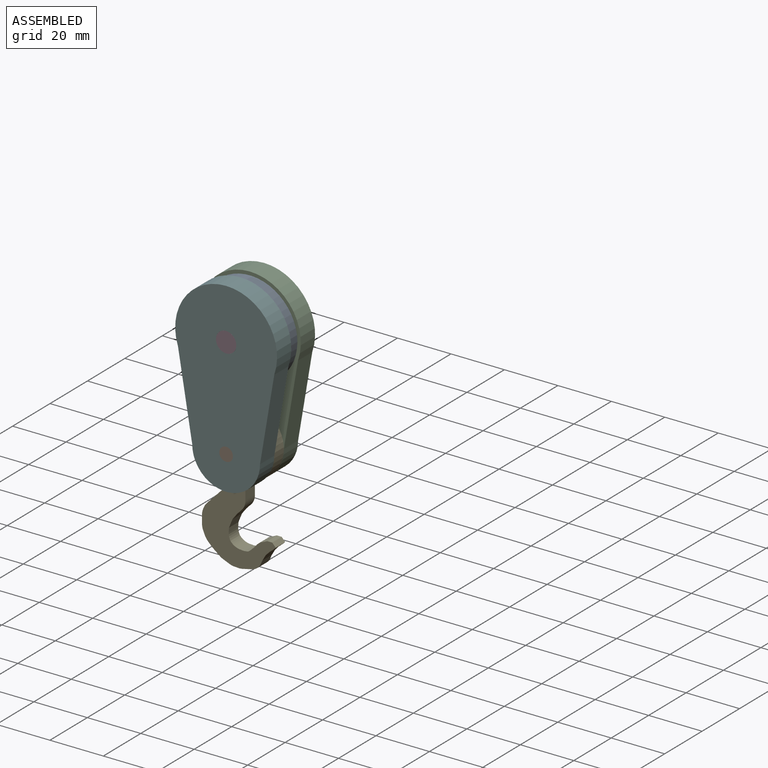
[diagram: assembled view]
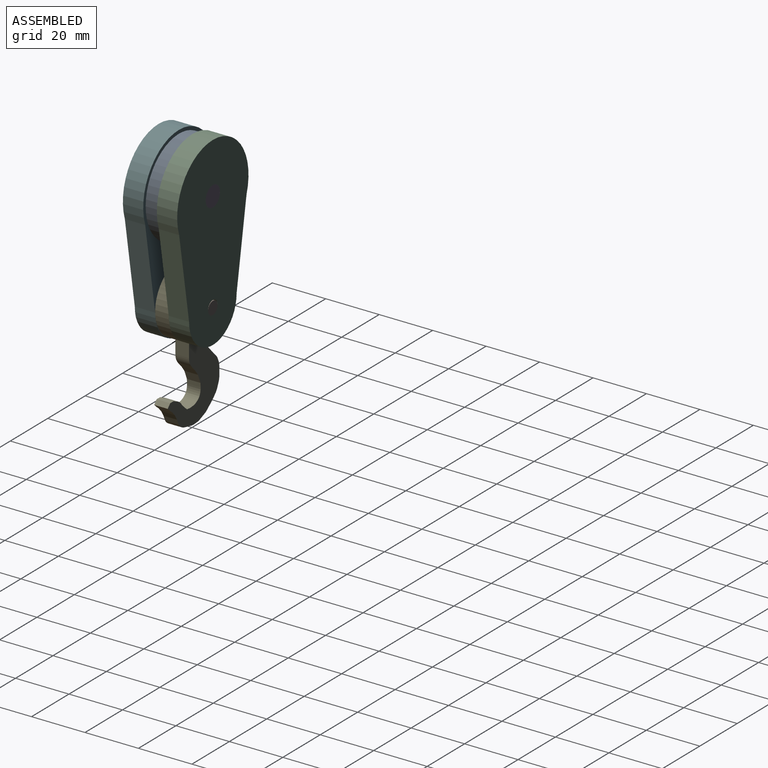
[diagram: assembled view, second angle]
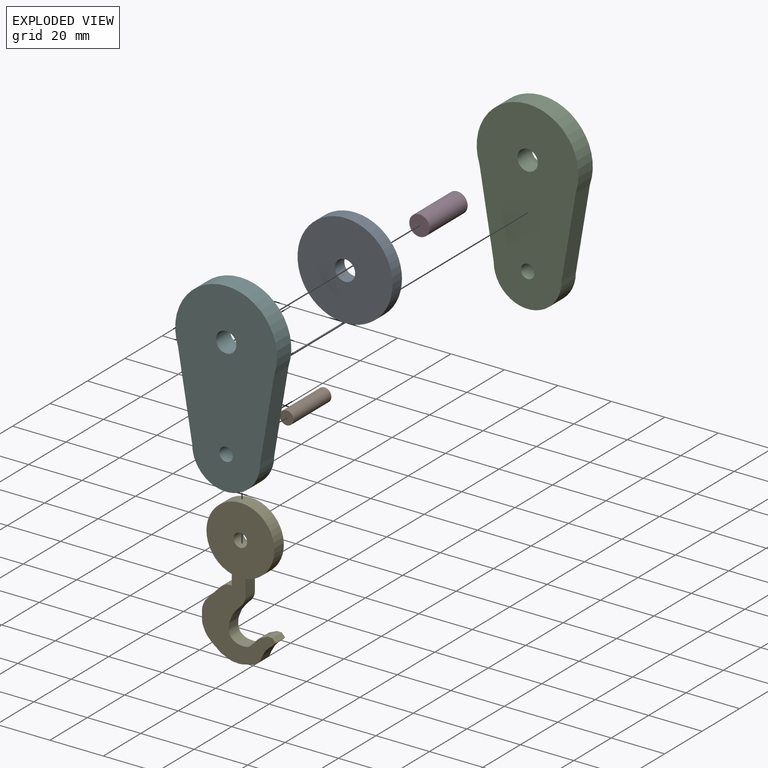
[diagram: exploded view]
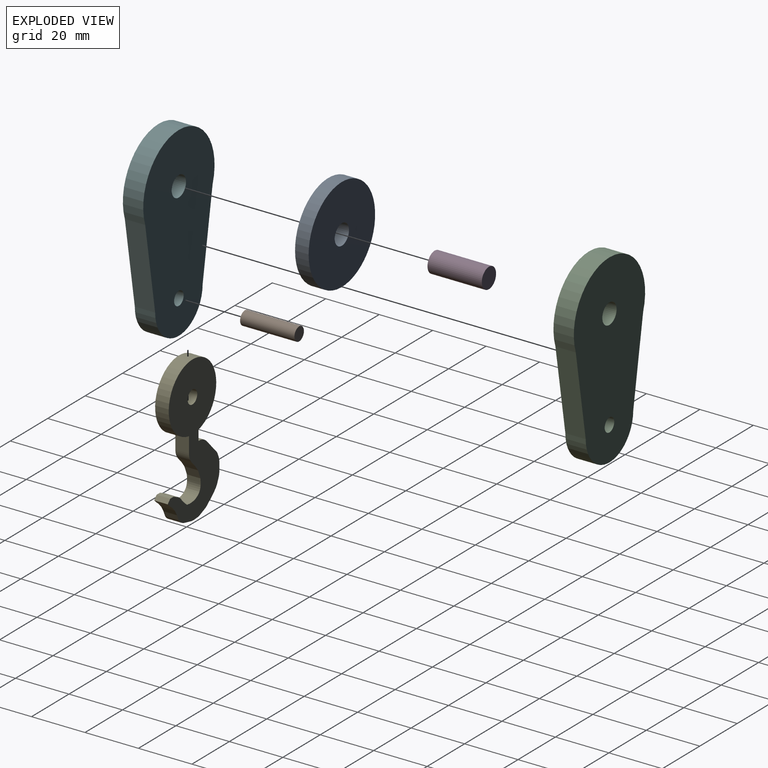
[diagram: exploded view, second angle]
ASSEMBLY  parts=6 mates=5
PART A: 4 faces, bbox 35.5x5.1x35.5 mm
  f0: cylinder r=17.77mm len=35.54mm, axis (0,1,0), area 567.1mm2, adj f1,f2
  f1: plane 35.54x35.54mm, normal (0,-1,0), area 946.2mm2, adj f0,f3
  f2: plane 35.54x35.54mm, normal (0,1,0), area 946.2mm2, adj f0,f3
  f3: cylinder r=3.81mm len=7.62mm, axis (0,1,0), area 121.6mm2, adj f1,f2
PART B: 3 faces, bbox 5.1x20.3x5.1 mm
  f0: cylinder r=2.55mm len=20.32mm, axis (0,1,0), area 324.9mm2, adj f1,f2
  f1: plane 5.09x5.09mm, normal (0,-1,0), area 20.3mm2, adj f0
  f2: plane 5.09x5.09mm, normal (0,1,0), area 20.3mm2, adj f0
PART C: 8 faces, bbox 38.1x7.6x69.4 mm
  f0: cylinder r=19.06mm len=38.11mm, axis (0,-1,0), area 553.4mm2, adj f1,f3,f4,f5
  f1: plane 31.35x7.62mm, normal (-0.99,0,-0.17), area 242.3mm2, adj f0,f2,f4,f5
  f2: cylinder r=12.7mm len=25.41mm, axis (0,-1,0), area 304.1mm2, adj f1,f3,f4,f5
  f3: plane 31.35x7.62mm, normal (0.99,0,-0.17), area 242.3mm2, adj f0,f2,f4,f5
  f4: plane 69.37x38.11mm, normal (0,1,0), area 1954.7mm2, adj f0,f1,f2,f3,f6,f7
  f5: plane 69.37x38.11mm, normal (0,-1,0), area 1954.7mm2, adj f0,f1,f2,f3,f6,f7
  f6: cylinder r=3.81mm len=7.62mm, axis (0,-1,0), area 182.4mm2, adj f4,f5
  f7: cylinder r=2.54mm len=7.62mm, axis (0,-1,0), area 121.6mm2, adj f4,f5
PART D: 3 faces, bbox 7.6x20.3x7.6 mm
  f0: cylinder r=3.81mm len=20.32mm, axis (0,1,0), area 486.4mm2, adj f1,f2
  f1: plane 7.62x7.62mm, normal (0,-1,0), area 45.6mm2, adj f0
  f2: plane 7.62x7.62mm, normal (0,1,0), area 45.6mm2, adj f0
PART E: 50 faces, bbox 27.6x5.1x54.6 mm
  f0: cylinder r=12.7mm len=25.4mm, axis (0,1,0), area 379.2mm2, adj f1,f32,f33,f34
  f1: plane 5.08x3.85mm, normal (-1,0,0), area 19.5mm2, adj f0,f2,f33,f34
  f2: plane 5.08x0.52mm, normal (0,0,1), area 2.6mm2, adj f1,f33,f34,f41
  f3: plane 5.08x0.44mm, normal (-0.61,0,0.79), area 2.9mm2, adj f4,f33,f34,f41
  f4: plane 5.6x5.32mm, normal (-0.72,0,0.69), area 39.2mm2, adj f3,f33,f34,f46
  f5: plane 5.08x0.83mm, normal (-0.92,0,0.39), area 4.6mm2, adj f33,f34,f46,f47
  f6: plane 5.08x3.08mm, normal (-1,0,0), area 15.7mm2, adj f33,f34,f42,f47
  f7: plane 5.08x1.68mm, normal (-0.92,0,-0.39), area 9.3mm2, adj f33,f34,f42,f48
  f8: plane 5.08x1.33mm, normal (-0.71,0,-0.71), area 9.5mm2, adj f33,f34,f36,f48
  f9: plane 5.08x2.64mm, normal (-0.62,0,-0.78), area 17.2mm2, adj f33,f34,f36,f37
  f10: plane 5.08x2.5mm, normal (-0.38,0,-0.93), area 13.7mm2, adj f33,f34,f37,f38
  f11: plane 5.08x1.7mm, normal (-0.06,0,-1), area 8.6mm2, adj f33,f34,f38,f39
  f12: plane 5.08x3.58mm, normal (0.22,0,-0.98), area 18.6mm2, adj f33,f34,f35,f39
  f13: plane 5.08x2.02mm, normal (0.91,0,-0.41), area 11.3mm2, adj f14,f33,f34,f35
  f14: plane 5.08x2.02mm, normal (0.86,0,-0.51), area 12mm2, adj f13,f15,f33,f34
  f15: plane 5.08x1.42mm, normal (0.73,0,-0.68), area 9.8mm2, adj f14,f16,f33,f34
  f16: plane 5.08x1.27mm, normal (0.64,0,-0.77), area 8.4mm2, adj f15,f17,f33,f34
  f17: plane 5.08x1.15mm, normal (0.68,0,-0.73), area 8mm2, adj f16,f18,f33,f34
  f18: plane 5.08x1.42mm, normal (0.73,0,0.68), area 9.8mm2, adj f17,f19,f33,f34
  f19: plane 5.08x1.82mm, normal (0,0,1), area 9.2mm2, adj f18,f20,f33,f34
  f20: plane 5.08x1.52mm, normal (-0.42,0,0.91), area 8.5mm2, adj f19,f21,f33,f34
  f21: plane 5.08x0.08mm, normal (-0.3,0,0.95), area 0.4mm2, adj f20,f33,f34,f40
  f22: plane 5.08x0.44mm, normal (-0.79,0,0.61), area 2.8mm2, adj f23,f33,f34,f40
  f23: plane 5.08x1.82mm, normal (-0.71,0,0.71), area 13.1mm2, adj f22,f24,f33,f34
  f24: plane 5.08x0.91mm, normal (-0.61,0,0.79), area 5.9mm2, adj f23,f25,f33,f34
  f25: plane 5.08x1.42mm, normal (-0.14,0,0.99), area 7.3mm2, adj f24,f26,f33,f34
  f26: plane 5.08x1.5mm, normal (0.07,0,1), area 7.6mm2, adj f25,f27,f33,f34
  f27: plane 5.08x0.31mm, normal (0.11,0,0.99), area 1.6mm2, adj f26,f33,f34,f44
  f28: plane 5.08x1.52mm, normal (1,0,-0.06), area 7.8mm2, adj f29,f33,f34,f43
  f29: plane 5.08x3.23mm, normal (0.93,0,-0.38), area 17.7mm2, adj f28,f30,f33,f34
  f30: plane 5.08x2.22mm, normal (0.79,0,-0.61), area 14.3mm2, adj f29,f31,f33,f34
  f31: plane 5.08x1.79mm, normal (0.72,0,-0.69), area 12.6mm2, adj f30,f33,f34,f45
  f32: plane 5.86x5.08mm, normal (1,0,0), area 29.7mm2, adj f0,f33,f34,f45
  f33: plane 54.57x27.59mm, normal (0,-1,0), area 837.6mm2, adj f0,f1,f2,f3,f4,f5,f6,f7
  f34: plane 54.57x27.59mm, normal (0,1,0), area 837.6mm2, adj f0,f1,f2,f3,f4,f5,f6,f7
  f35: cylinder r=5.08mm len=5.08mm, axis (0,-1,0), area 19.3mm2, adj f12,f13,f33,f34
  f36: cylinder r=5.08mm len=5.08mm, axis (0,1,0), area 2.9mm2, adj f8,f9,f33,f34
  f37: cylinder r=5.08mm len=5.08mm, axis (0,1,0), area 7.3mm2, adj f9,f10,f33,f34
  f38: cylinder r=5.08mm len=5.08mm, axis (0,1,0), area 8.4mm2, adj f10,f11,f33,f34
  f39: cylinder r=5.08mm len=5.08mm, axis (0,1,0), area 7.3mm2, adj f11,f12,f33,f34
  f40: cylinder r=5.08mm len=5.08mm, axis (0,1,0), area 15.9mm2, adj f21,f22,f33,f34
  f41: cylinder r=5.08mm len=5.08mm, axis (0,1,0), area 17.1mm2, adj f2,f3,f33,f34
  f42: cylinder r=5.08mm len=5.08mm, axis (0,1,0), area 10.4mm2, adj f6,f7,f33,f34
  f43: cylinder r=5.08mm len=5.08mm, axis (0,-1,0), area 14.8mm2, adj f28,f33,f34,f44
  f44: cylinder r=5.08mm len=5.08mm, axis (0,-1,0), area 20.4mm2, adj f27,f33,f34,f43
  f45: cylinder r=5.08mm len=5.08mm, axis (0,1,0), area 19.7mm2, adj f31,f32,f33,f34
  f46: cylinder r=5.08mm len=5.08mm, axis (0,1,0), area 9.3mm2, adj f4,f5,f33,f34
  f47: cylinder r=5.08mm len=5.08mm, axis (0,1,0), area 10.3mm2, adj f5,f6,f33,f34
  f48: cylinder r=5.08mm len=5.08mm, axis (0,1,0), area 9.8mm2, adj f7,f8,f33,f34
  f49: cylinder r=2.54mm len=5.08mm, axis (0,1,0), area 81.1mm2, adj f33,f34
PART F: 8 faces, bbox 38.1x7.6x69.6 mm
  f0: cylinder r=19.05mm len=38.11mm, axis (0,1,0), area 552.8mm2, adj f1,f3,f4,f5
  f1: plane 31.67x7.62mm, normal (-0.99,0,-0.17), area 244.7mm2, adj f0,f2,f4,f5
  f2: cylinder r=12.69mm len=25.37mm, axis (0,1,0), area 303.7mm2, adj f1,f3,f4,f5
  f3: plane 31.67x7.62mm, normal (0.99,0,-0.17), area 244.7mm2, adj f0,f2,f4,f5
  f4: plane 69.64x38.11mm, normal (0,-1,0), area 1962.3mm2, adj f0,f1,f2,f3,f6,f7
  f5: plane 69.64x38.11mm, normal (0,1,0), area 1962.3mm2, adj f0,f1,f2,f3,f6,f7
  f6: cylinder r=2.54mm len=7.62mm, axis (0,1,0), area 121.6mm2, adj f4,f5
  f7: cylinder r=3.81mm len=7.62mm, axis (0,1,0), area 182.4mm2, adj f4,f5
PLACE A t=(-93.28,0.92,76.7)mm
PLACE B t=(-47.45,8.54,-23.49)mm
PLACE C t=(-83.35,0.92,-1.07)mm
PLACE D t=(-31.41,8.54,13.99)mm
PLACE E t=(-41.82,0.92,41.56)mm
PLACE F t=(0,-4.16,-1.36)mm
MATE fastened F.f0 <-> A.f0  axis (0,1,0) through (-41.82,-4.16,36.54)mm
MATE fastened B.f0 <-> F.f2  axis (0,-1,0) through (-41.82,-11.78,-1.36)mm
MATE fastened D.f0 <-> F.f0  axis (0,-1,0) through (-41.82,-11.78,36.54)mm
MATE fastened A.f0 <-> C.f0  axis (0,-1,0) through (-41.82,-4.16,36.54)mm
MATE fastened E.f0 <-> C.f2  axis (0,1,0) through (-41.82,0.92,-1.07)mm
